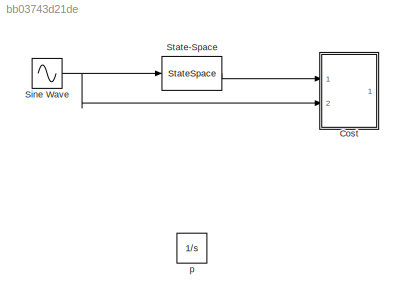
MODEL slx_bb03743d21de
KIND model
CONFIG AbsTol = auto
CONFIG EnableMultiTasking = off
CONFIG FixedStep = auto
CONFIG MaxStep = auto
CONFIG MinStep = auto
CONFIG RelTol = 1e-3
CONFIG SampleTimeConstraint = Unconstrained
CONFIG Solver = VariableStepAuto
CONFIG SolverName = VariableStepAuto
CONFIG StartTime = 0.0
CONFIG StopTime = 10.0
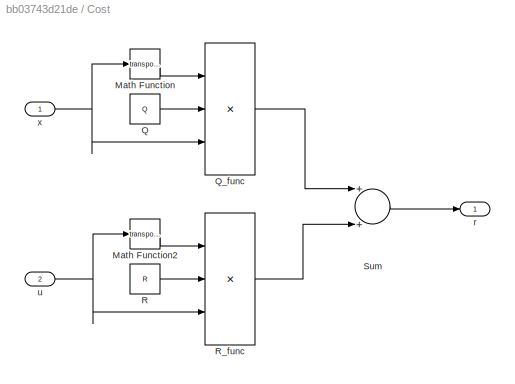
BLOCK [SubSystem] Cost 
  Ports = [2, 1]
  RequestExecContextInheritance = off
  Variant = off
BLOCK [Math] Cost /Math Function
  Operator = transpose
  Ports = [1, 1]
BLOCK [Math] Cost /Math Function2
  Operator = transpose
  Ports = [1, 1]
BLOCK [Constant] Cost /Q
  Value = Q
BLOCK [Product] Cost /Q_func
  InputSameDT = off
  Inputs = 3
  Multiplication = Matrix(*)
  OutDataTypeStr = Inherit: Inherit via internal rule
  Ports = [3, 1]
  RndMeth = Floor
  SaturateOnIntegerOverflow = off
BLOCK [Constant] Cost /R
  Value = R
BLOCK [Product] Cost /R_func
  InputSameDT = off
  Inputs = 3
  Multiplication = Matrix(*)
  OutDataTypeStr = Inherit: Inherit via internal rule
  Ports = [3, 1]
  RndMeth = Floor
  SaturateOnIntegerOverflow = off
BLOCK [Sum] Cost /Sum
  InputSameDT = off
  OutDataTypeStr = Inherit: Inherit via internal rule
  Ports = [2, 1]
  SaturateOnIntegerOverflow = off
BLOCK [Outport] Cost /r
  IconDisplay = Port number
BLOCK [Inport] Cost /u
  IconDisplay = Port number
  Port = 2
BLOCK [Inport] Cost /x
  IconDisplay = Port number
BLOCK [Sin] Sine Wave
  Ports = [0, 1]
  SampleTime = 0
BLOCK [StateSpace] State-Space
  A = A
  B = B
  C = C
  D = D
  Ports = [1, 1]
  X0 = x0
BLOCK [Integrator] p
  Ports = [1, 1]
LINE Cost /Math Function2:1 -> Cost /R_func:1
LINE Cost /Math Function:1 -> Cost /Q_func:1
LINE Cost /Q:1 -> Cost /Q_func:2
LINE Cost /Q_func:1 -> Cost /Sum:1
LINE Cost /R:1 -> Cost /R_func:2
LINE Cost /R_func:1 -> Cost /Sum:2
LINE Cost /Sum:1 -> Cost /r:1
NET Cost /u:1 -> Cost /Math Function2:1, Cost /R_func:3
NET Cost /x:1 -> Cost /Math Function:1, Cost /Q_func:3
NET Sine Wave:1 -> Cost :2, State-Space:1
LINE State-Space:1 -> Cost :1
note: NET lines group one-source signal fan-out (src -> all destinations, sorted); 1:1 wires keep LINE
